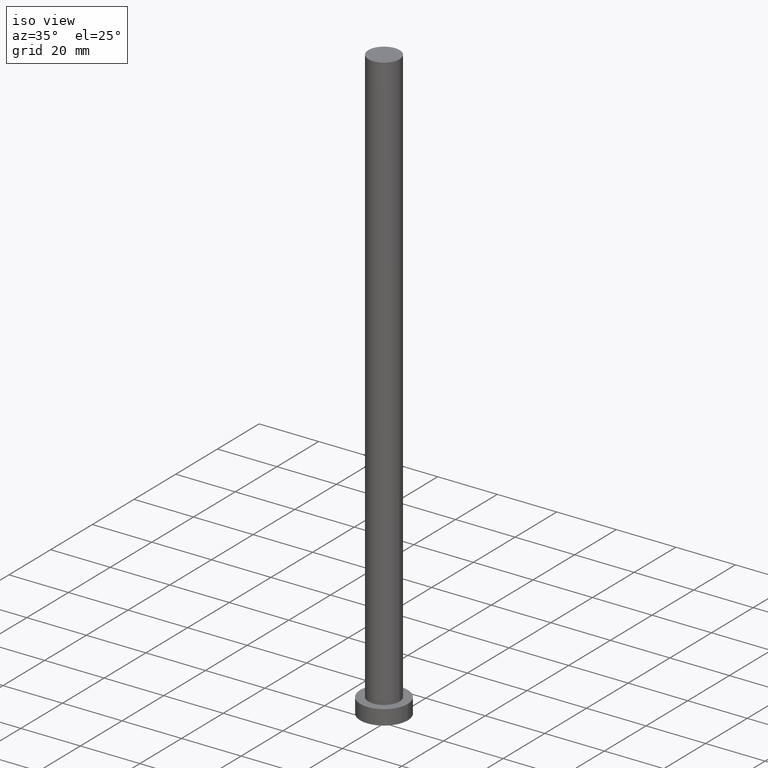
[diagram: clean part render]
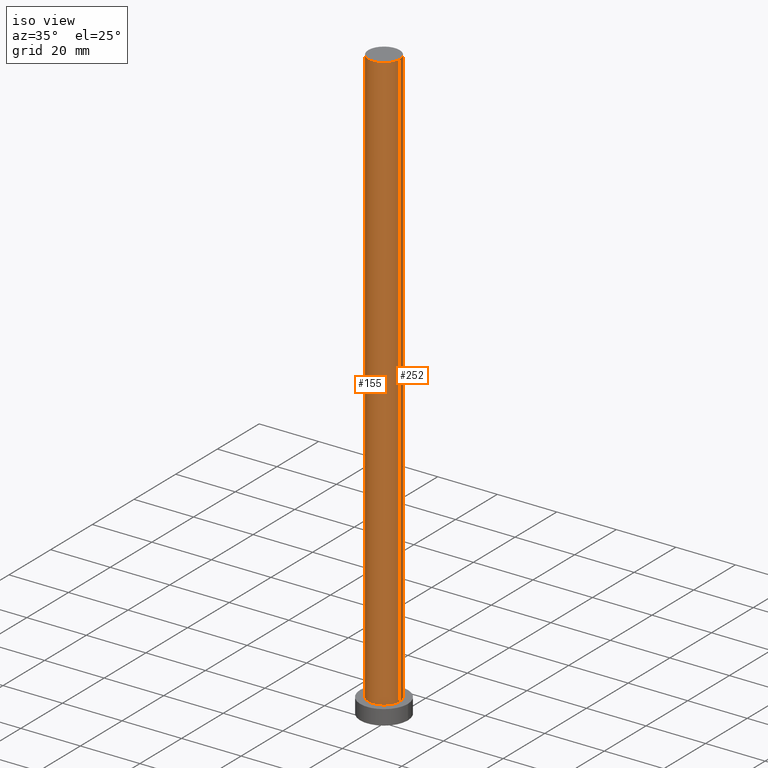
[diagram: same view with one multi-face feature highlighted, each face labeled with its STEP entity id]
A machine part, iso view. The highlighted faces form ONE feature: a constant-radius fillet chain: 2 tangent blend faces with common blend radius 5.25 mm. The faces share edges in the B-rep.
Their STEP definitions:
[1] entity #252 (Cylinder):
#5 = CARTESIAN_POINT ( 'NONE',  ( 0.000000000000000000, 0.000000000000000000, 5.000000000000000000 ) ) ;
#9 = DIRECTION ( 'NONE',  ( 0.000000000000000000, 0.000000000000000000, 1.000000000000000000 ) ) ;
#35 = CARTESIAN_POINT ( 'NONE',  ( 0.000000000000000000, 0.000000000000000000, 200.0000000000000000 ) ) ;
#36 = DIRECTION ( 'NONE',  ( -0.000000000000000000, -0.000000000000000000, -1.000000000000000000 ) ) ;
#38 = AXIS2_PLACEMENT_3D ( 'NONE', #147, #50, #209 ) ;
#41 = VERTEX_POINT ( 'NONE', #247 ) ;
#42 = VERTEX_POINT ( 'NONE', #44 ) ;
#44 = CARTESIAN_POINT ( 'NONE',  ( -5.250000000000000000, 0.000000000000000000, 200.0000000000000000 ) ) ;
#49 = CARTESIAN_POINT ( 'NONE',  ( -5.250000000000000000, 0.000000000000000000, 5.000000000000000000 ) ) ;
#50 = DIRECTION ( 'NONE',  ( 0.000000000000000000, 0.000000000000000000, 1.000000000000000000 ) ) ;
#58 = VERTEX_POINT ( 'NONE', #127 ) ;
#71 = AXIS2_PLACEMENT_3D ( 'NONE', #5, #9, #84 ) ;
#75 = EDGE_CURVE ( 'NONE', #42, #176, #185, .T. ) ;
#84 = DIRECTION ( 'NONE',  ( 1.000000000000000000, 0.000000000000000000, 0.000000000000000000 ) ) ;
#105 = ORIENTED_EDGE ( 'NONE', *, *, #175, .T. ) ;
#108 = LINE ( 'NONE', #226, #159 ) ;
#116 = DIRECTION ( 'NONE',  ( -1.000000000000000000, 0.000000000000000000, 0.000000000000000000 ) ) ;
#122 = ORIENTED_EDGE ( 'NONE', *, *, #75, .F. ) ;
#127 = CARTESIAN_POINT ( 'NONE',  ( 5.250000000000000000, 6.429395695523604153E-16, 5.000000000000000000 ) ) ;
#128 = CARTESIAN_POINT ( 'NONE',  ( -5.250000000000000000, 0.000000000000000000, 200.0000000000000000 ) ) ;
#133 = EDGE_CURVE ( 'NONE', #41, #58, #108, .T. ) ;
#135 = FACE_OUTER_BOUND ( 'NONE', #220, .T. ) ;
#137 = ORIENTED_EDGE ( 'NONE', *, *, #133, .T. ) ;
#147 = CARTESIAN_POINT ( 'NONE',  ( 0.000000000000000000, 0.000000000000000000, 200.0000000000000000 ) ) ;
#153 = CIRCLE ( 'NONE', #71, 5.250000000000000000 ) ;
#154 = AXIS2_PLACEMENT_3D ( 'NONE', #35, #36, #116 ) ;
#159 = VECTOR ( 'NONE', #160, 1000.000000000000000 ) ;
#160 = DIRECTION ( 'NONE',  ( -0.000000000000000000, -0.000000000000000000, -1.000000000000000000 ) ) ;
#167 = ORIENTED_EDGE ( 'NONE', *, *, #200, .F. ) ;
#175 = EDGE_CURVE ( 'NONE', #58, #176, #153, .T. ) ;
#176 = VERTEX_POINT ( 'NONE', #49 ) ;
#185 = LINE ( 'NONE', #128, #254 ) ;
#200 = EDGE_CURVE ( 'NONE', #41, #42, #255, .T. ) ;
#202 = DIRECTION ( 'NONE',  ( -0.000000000000000000, -0.000000000000000000, -1.000000000000000000 ) ) ;
#209 = DIRECTION ( 'NONE',  ( 1.000000000000000000, 0.000000000000000000, 0.000000000000000000 ) ) ;
#214 = CYLINDRICAL_SURFACE ( 'NONE', #154, 5.250000000000000000 ) ;
#220 = EDGE_LOOP ( 'NONE', ( #167, #137, #105, #122 ) ) ;
#226 = CARTESIAN_POINT ( 'NONE',  ( 5.250000000000000000, 6.429395695523604153E-16, 200.0000000000000000 ) ) ;
#247 = CARTESIAN_POINT ( 'NONE',  ( 5.250000000000000000, 6.429395695523604153E-16, 200.0000000000000000 ) ) ;
#252 = ADVANCED_FACE ( 'NONE', ( #135 ), #214, .T. ) ;
#254 = VECTOR ( 'NONE', #202, 1000.000000000000000 ) ;
#255 = CIRCLE ( 'NONE', #38, 5.250000000000000000 ) ;
[2] entity #155 (Cylinder):
#8 = AXIS2_PLACEMENT_3D ( 'NONE', #94, #197, #251 ) ;
#10 = ORIENTED_EDGE ( 'NONE', *, *, #52, .T. ) ;
#20 = CARTESIAN_POINT ( 'NONE',  ( 0.000000000000000000, 0.000000000000000000, 200.0000000000000000 ) ) ;
#24 = DIRECTION ( 'NONE',  ( -0.000000000000000000, -0.000000000000000000, -1.000000000000000000 ) ) ;
#25 = EDGE_CURVE ( 'NONE', #42, #41, #115, .T. ) ;
#29 = FACE_OUTER_BOUND ( 'NONE', #109, .T. ) ;
#41 = VERTEX_POINT ( 'NONE', #247 ) ;
#42 = VERTEX_POINT ( 'NONE', #44 ) ;
#44 = CARTESIAN_POINT ( 'NONE',  ( -5.250000000000000000, 0.000000000000000000, 200.0000000000000000 ) ) ;
#48 = ORIENTED_EDGE ( 'NONE', *, *, #75, .T. ) ;
#49 = CARTESIAN_POINT ( 'NONE',  ( -5.250000000000000000, 0.000000000000000000, 5.000000000000000000 ) ) ;
#52 = EDGE_CURVE ( 'NONE', #176, #58, #136, .T. ) ;
#58 = VERTEX_POINT ( 'NONE', #127 ) ;
#64 = CYLINDRICAL_SURFACE ( 'NONE', #148, 5.250000000000000000 ) ;
#75 = EDGE_CURVE ( 'NONE', #42, #176, #185, .T. ) ;
#94 = CARTESIAN_POINT ( 'NONE',  ( 0.000000000000000000, 0.000000000000000000, 5.000000000000000000 ) ) ;
#97 = ORIENTED_EDGE ( 'NONE', *, *, #133, .F. ) ;
#108 = LINE ( 'NONE', #226, #159 ) ;
#109 = EDGE_LOOP ( 'NONE', ( #97, #236, #48, #10 ) ) ;
#115 = CIRCLE ( 'NONE', #168, 5.250000000000000000 ) ;
#127 = CARTESIAN_POINT ( 'NONE',  ( 5.250000000000000000, 6.429395695523604153E-16, 5.000000000000000000 ) ) ;
#128 = CARTESIAN_POINT ( 'NONE',  ( -5.250000000000000000, 0.000000000000000000, 200.0000000000000000 ) ) ;
#133 = EDGE_CURVE ( 'NONE', #41, #58, #108, .T. ) ;
#136 = CIRCLE ( 'NONE', #8, 5.250000000000000000 ) ;
#142 = DIRECTION ( 'NONE',  ( -1.000000000000000000, 0.000000000000000000, 0.000000000000000000 ) ) ;
#148 = AXIS2_PLACEMENT_3D ( 'NONE', #182, #24, #142 ) ;
#155 = ADVANCED_FACE ( 'NONE', ( #29 ), #64, .T. ) ;
#157 = DIRECTION ( 'NONE',  ( 0.000000000000000000, 0.000000000000000000, 1.000000000000000000 ) ) ;
#159 = VECTOR ( 'NONE', #160, 1000.000000000000000 ) ;
#160 = DIRECTION ( 'NONE',  ( -0.000000000000000000, -0.000000000000000000, -1.000000000000000000 ) ) ;
#168 = AXIS2_PLACEMENT_3D ( 'NONE', #20, #157, #217 ) ;
#176 = VERTEX_POINT ( 'NONE', #49 ) ;
#182 = CARTESIAN_POINT ( 'NONE',  ( 0.000000000000000000, 0.000000000000000000, 200.0000000000000000 ) ) ;
#185 = LINE ( 'NONE', #128, #254 ) ;
#197 = DIRECTION ( 'NONE',  ( 0.000000000000000000, 0.000000000000000000, 1.000000000000000000 ) ) ;
#202 = DIRECTION ( 'NONE',  ( -0.000000000000000000, -0.000000000000000000, -1.000000000000000000 ) ) ;
#217 = DIRECTION ( 'NONE',  ( 1.000000000000000000, 0.000000000000000000, 0.000000000000000000 ) ) ;
#226 = CARTESIAN_POINT ( 'NONE',  ( 5.250000000000000000, 6.429395695523604153E-16, 200.0000000000000000 ) ) ;
#236 = ORIENTED_EDGE ( 'NONE', *, *, #25, .F. ) ;
#247 = CARTESIAN_POINT ( 'NONE',  ( 5.250000000000000000, 6.429395695523604153E-16, 200.0000000000000000 ) ) ;
#251 = DIRECTION ( 'NONE',  ( 1.000000000000000000, 0.000000000000000000, 0.000000000000000000 ) ) ;
#254 = VECTOR ( 'NONE', #202, 1000.000000000000000 ) ;